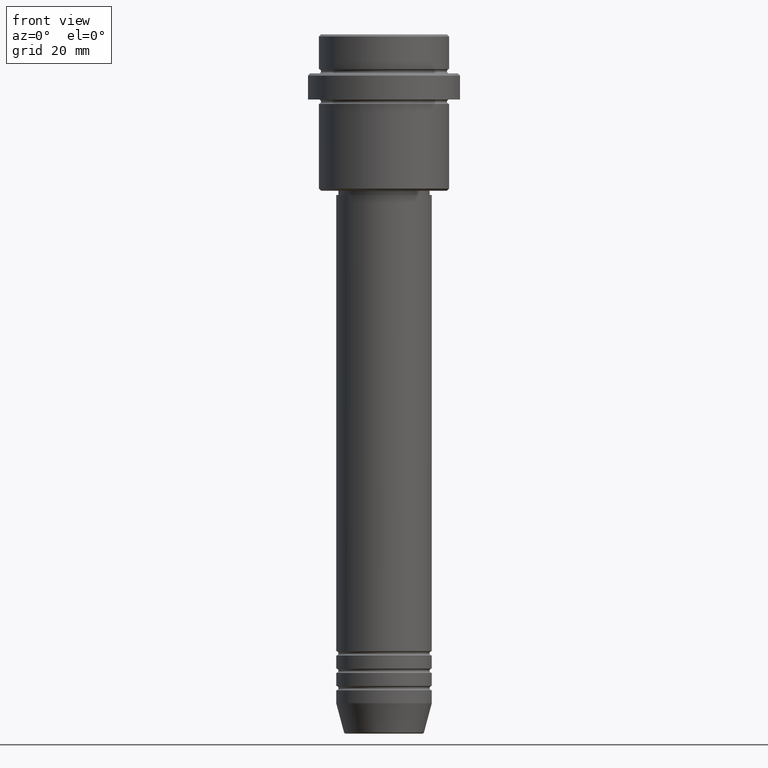
[diagram: clean part render]
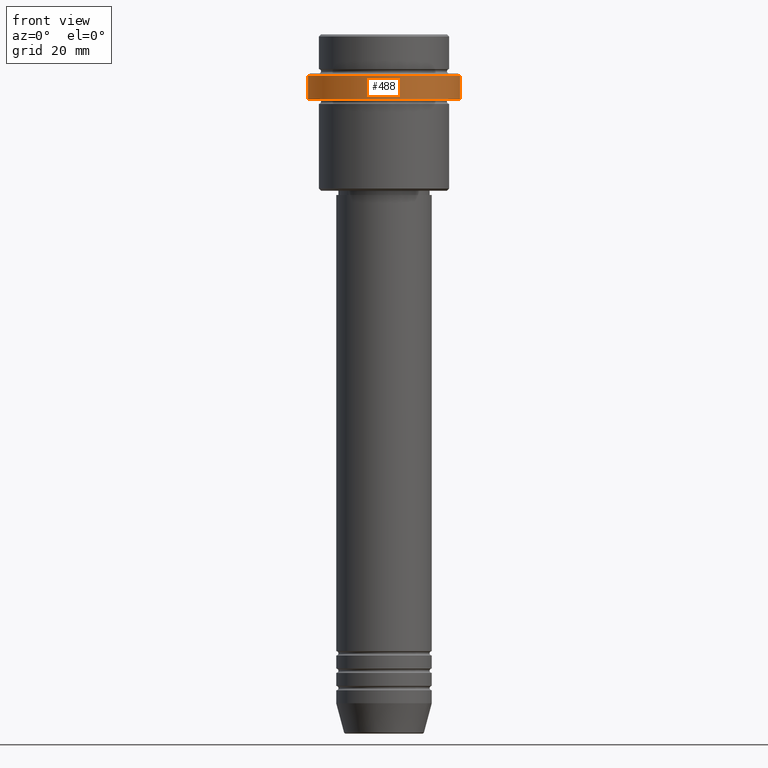
[diagram: same view with one face highlighted and labeled with its STEP entity id]
A machine part, front view. The second image highlights one B-rep face of the part: STEP entity #488.
In plain terms, the highlighted cylindrical surface (partial cylindrical patch) has radius 17.5 mm, axis along (-0, -0, 1).
Its self-contained STEP definition (entity closure, byte-faithful):
#22 = VERTEX_POINT ( 'NONE', #315 ) ;
#64 = VERTEX_POINT ( 'NONE', #994 ) ;
#82 = DIRECTION ( 'NONE',  ( -0.000000000000000000, -0.000000000000000000, 1.000000000000000000 ) ) ;
#114 = VERTEX_POINT ( 'NONE', #684 ) ;
#123 = ORIENTED_EDGE ( 'NONE', *, *, #450, .T. ) ;
#133 = CARTESIAN_POINT ( 'NONE',  ( -17.50000000000000000, 2.143131898507868248E-15, 0.000000000000000000 ) ) ;
#144 = ORIENTED_EDGE ( 'NONE', *, *, #1119, .F. ) ;
#152 = DIRECTION ( 'NONE',  ( 0.000000000000000000, 0.000000000000000000, -1.000000000000000000 ) ) ;
#198 = CARTESIAN_POINT ( 'NONE',  ( 0.000000000000000000, 0.000000000000000000, -15.00000000000000000 ) ) ;
#252 = AXIS2_PLACEMENT_3D ( 'NONE', #198, #82, #765 ) ;
#277 = LINE ( 'NONE', #737, #1066 ) ;
#315 = CARTESIAN_POINT ( 'NONE',  ( -17.50000000000000000, 2.143131898507868248E-15, -15.00000000000000000 ) ) ;
#350 = VECTOR ( 'NONE', #568, 1000.000000000000000 ) ;
#394 = CARTESIAN_POINT ( 'NONE',  ( 0.000000000000000000, 0.000000000000000000, -9.500000000000014211 ) ) ;
#407 = ORIENTED_EDGE ( 'NONE', *, *, #1039, .T. ) ;
#411 = AXIS2_PLACEMENT_3D ( 'NONE', #514, #945, #1371 ) ;
#450 = EDGE_CURVE ( 'NONE', #730, #114, #277, .T. ) ;
#488 = ADVANCED_FACE ( 'NONE', ( #846 ), #938, .T. ) ;
#514 = CARTESIAN_POINT ( 'NONE',  ( 0.000000000000000000, 0.000000000000000000, 0.000000000000000000 ) ) ;
#568 = DIRECTION ( 'NONE',  ( -0.000000000000000000, -0.000000000000000000, 1.000000000000000000 ) ) ;
#586 = ORIENTED_EDGE ( 'NONE', *, *, #917, .T. ) ;
#684 = CARTESIAN_POINT ( 'NONE',  ( 17.50000000000000000, 0.000000000000000000, -9.500000000000014211 ) ) ;
#730 = VERTEX_POINT ( 'NONE', #794 ) ;
#737 = CARTESIAN_POINT ( 'NONE',  ( 17.50000000000000000, 0.000000000000000000, 0.000000000000000000 ) ) ;
#765 = DIRECTION ( 'NONE',  ( 1.000000000000000000, 0.000000000000000000, 0.000000000000000000 ) ) ;
#794 = CARTESIAN_POINT ( 'NONE',  ( 17.50000000000000000, 0.000000000000000000, -15.00000000000000000 ) ) ;
#846 = FACE_OUTER_BOUND ( 'NONE', #1127, .T. ) ;
#917 = EDGE_CURVE ( 'NONE', #114, #64, #1330, .T. ) ;
#938 = CYLINDRICAL_SURFACE ( 'NONE', #411, 17.50000000000000000 ) ;
#945 = DIRECTION ( 'NONE',  ( -0.000000000000000000, -0.000000000000000000, 1.000000000000000000 ) ) ;
#977 = AXIS2_PLACEMENT_3D ( 'NONE', #394, #152, #1164 ) ;
#994 = CARTESIAN_POINT ( 'NONE',  ( -17.50000000000000000, 2.143131898507868248E-15, -9.500000000000014211 ) ) ;
#1039 = EDGE_CURVE ( 'NONE', #22, #730, #1203, .T. ) ;
#1066 = VECTOR ( 'NONE', #1072, 1000.000000000000000 ) ;
#1072 = DIRECTION ( 'NONE',  ( -0.000000000000000000, -0.000000000000000000, 1.000000000000000000 ) ) ;
#1119 = EDGE_CURVE ( 'NONE', #22, #64, #1131, .T. ) ;
#1127 = EDGE_LOOP ( 'NONE', ( #144, #407, #123, #586 ) ) ;
#1131 = LINE ( 'NONE', #133, #350 ) ;
#1164 = DIRECTION ( 'NONE',  ( 1.000000000000000000, 0.000000000000000000, 0.000000000000000000 ) ) ;
#1203 = CIRCLE ( 'NONE', #252, 17.50000000000000000 ) ;
#1330 = CIRCLE ( 'NONE', #977, 17.50000000000000000 ) ;
#1371 = DIRECTION ( 'NONE',  ( 1.000000000000000000, 0.000000000000000000, 0.000000000000000000 ) ) ;